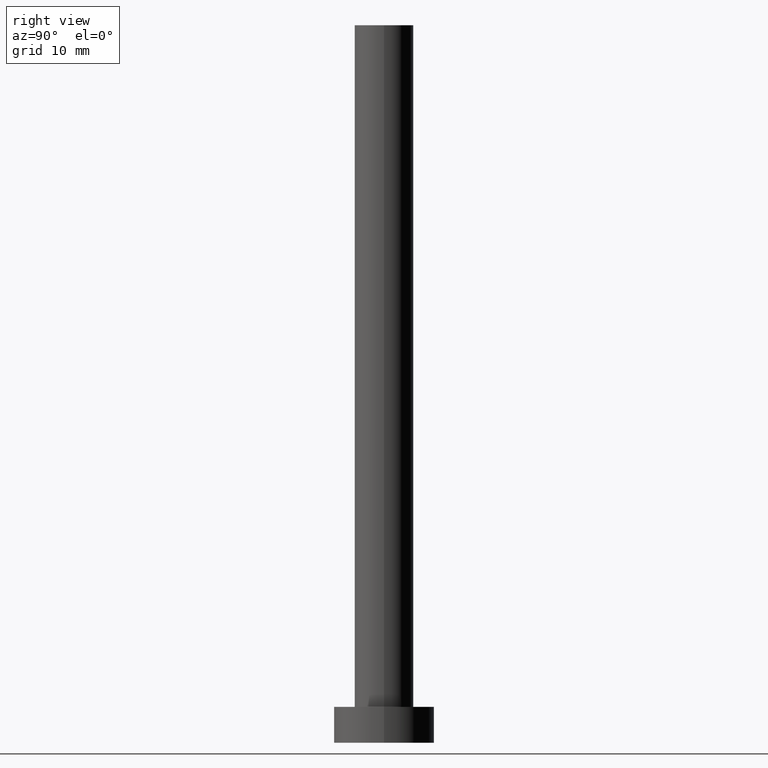
[diagram: clean part render]
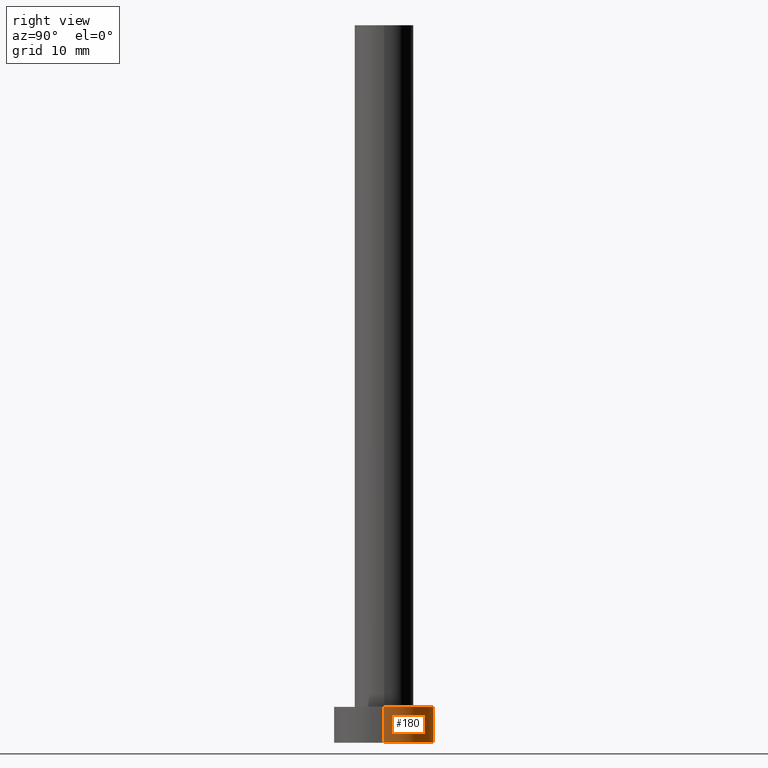
[diagram: same view with one face highlighted and labeled with its STEP entity id]
A machine part, right view. The second image highlights one B-rep face of the part: STEP entity #180.
In plain terms, the highlighted cylindrical surface (partial cylindrical patch) has radius 7 mm, axis along (-0, -0, -1).
Its self-contained STEP definition (entity closure, byte-faithful):
#8 = AXIS2_PLACEMENT_3D ( 'NONE', #223, #135, #177 ) ;
#14 = VECTOR ( 'NONE', #210, 1000.000000000000000 ) ;
#19 = ORIENTED_EDGE ( 'NONE', *, *, #72, .F. ) ;
#25 = DIRECTION ( 'NONE',  ( -1.000000000000000000, 0.000000000000000000, 0.000000000000000000 ) ) ;
#26 = AXIS2_PLACEMENT_3D ( 'NONE', #138, #201, #25 ) ;
#29 = CARTESIAN_POINT ( 'NONE',  ( -7.000000000000000000, 0.000000000000000000, 5.000000000000000000 ) ) ;
#32 = ORIENTED_EDGE ( 'NONE', *, *, #108, .T. ) ;
#41 = CARTESIAN_POINT ( 'NONE',  ( -7.000000000000000000, 0.000000000000000000, 0.000000000000000000 ) ) ;
#53 = DIRECTION ( 'NONE',  ( 0.000000000000000000, 0.000000000000000000, 1.000000000000000000 ) ) ;
#57 = EDGE_CURVE ( 'NONE', #222, #81, #82, .T. ) ;
#67 = CYLINDRICAL_SURFACE ( 'NONE', #26, 7.000000000000000000 ) ;
#72 = EDGE_CURVE ( 'NONE', #81, #92, #224, .T. ) ;
#79 = ORIENTED_EDGE ( 'NONE', *, *, #87, .T. ) ;
#81 = VERTEX_POINT ( 'NONE', #29 ) ;
#82 = CIRCLE ( 'NONE', #228, 7.000000000000000000 ) ;
#87 = EDGE_CURVE ( 'NONE', #222, #214, #102, .T. ) ;
#92 = VERTEX_POINT ( 'NONE', #41 ) ;
#102 = LINE ( 'NONE', #184, #14 ) ;
#108 = EDGE_CURVE ( 'NONE', #214, #92, #213, .T. ) ;
#118 = VECTOR ( 'NONE', #206, 1000.000000000000000 ) ;
#135 = DIRECTION ( 'NONE',  ( 0.000000000000000000, 0.000000000000000000, 1.000000000000000000 ) ) ;
#138 = CARTESIAN_POINT ( 'NONE',  ( 0.000000000000000000, 0.000000000000000000, 5.000000000000000000 ) ) ;
#148 = CARTESIAN_POINT ( 'NONE',  ( 0.000000000000000000, 0.000000000000000000, 5.000000000000000000 ) ) ;
#177 = DIRECTION ( 'NONE',  ( 1.000000000000000000, 0.000000000000000000, 0.000000000000000000 ) ) ;
#180 = ADVANCED_FACE ( 'NONE', ( #203 ), #67, .T. ) ;
#184 = CARTESIAN_POINT ( 'NONE',  ( 7.000000000000000000, 8.572527594031473190E-16, 5.000000000000000000 ) ) ;
#187 = DIRECTION ( 'NONE',  ( 1.000000000000000000, 0.000000000000000000, 0.000000000000000000 ) ) ;
#196 = CARTESIAN_POINT ( 'NONE',  ( 7.000000000000000000, 8.572527594031473190E-16, 0.000000000000000000 ) ) ;
#201 = DIRECTION ( 'NONE',  ( -0.000000000000000000, -0.000000000000000000, -1.000000000000000000 ) ) ;
#202 = ORIENTED_EDGE ( 'NONE', *, *, #57, .F. ) ;
#203 = FACE_OUTER_BOUND ( 'NONE', #204, .T. ) ;
#204 = EDGE_LOOP ( 'NONE', ( #202, #79, #32, #19 ) ) ;
#206 = DIRECTION ( 'NONE',  ( -0.000000000000000000, -0.000000000000000000, -1.000000000000000000 ) ) ;
#207 = CARTESIAN_POINT ( 'NONE',  ( -7.000000000000000000, 0.000000000000000000, 5.000000000000000000 ) ) ;
#210 = DIRECTION ( 'NONE',  ( -0.000000000000000000, -0.000000000000000000, -1.000000000000000000 ) ) ;
#213 = CIRCLE ( 'NONE', #8, 7.000000000000000000 ) ;
#214 = VERTEX_POINT ( 'NONE', #196 ) ;
#222 = VERTEX_POINT ( 'NONE', #233 ) ;
#223 = CARTESIAN_POINT ( 'NONE',  ( 0.000000000000000000, 0.000000000000000000, 0.000000000000000000 ) ) ;
#224 = LINE ( 'NONE', #207, #118 ) ;
#228 = AXIS2_PLACEMENT_3D ( 'NONE', #148, #53, #187 ) ;
#233 = CARTESIAN_POINT ( 'NONE',  ( 7.000000000000000000, 8.572527594031473190E-16, 5.000000000000000000 ) ) ;